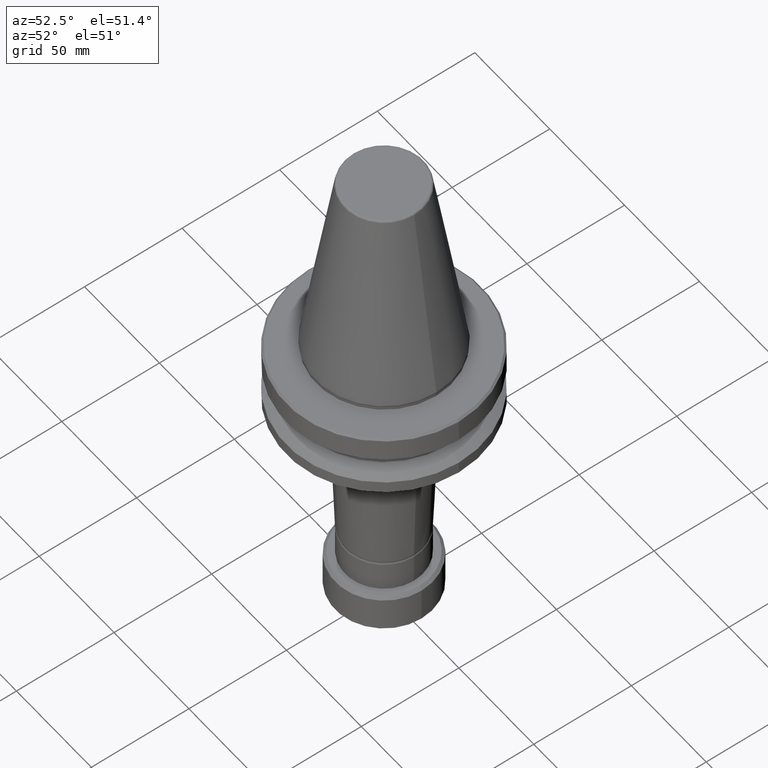
[diagram: clean part render]
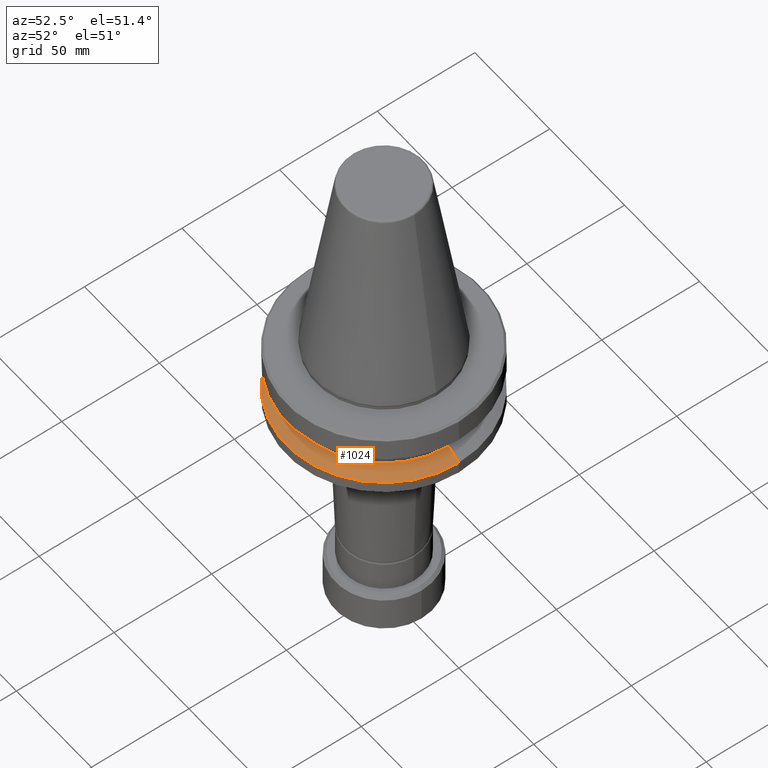
[diagram: same view with one face highlighted and labeled with its STEP entity id]
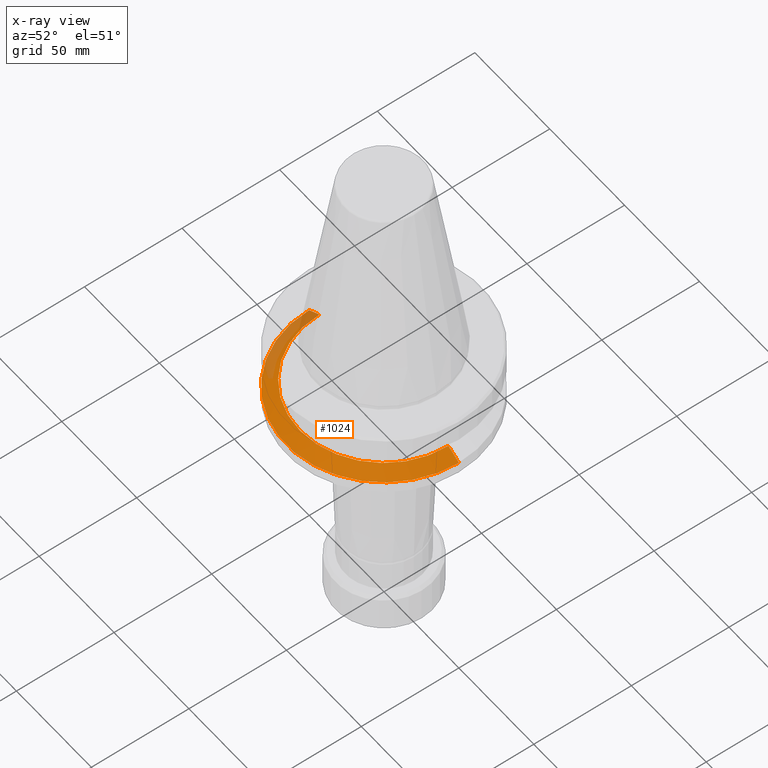
[diagram: x-ray of the same camera — body ghosted, the highlighted face saturated]
A machine part, auxiliary view. The second image highlights one B-rep face of the part: STEP entity #1024.
The next image is the same camera in x-ray: the body ghosted, the highlighted face saturated — about 14% of this face is hidden behind the body in this view.
In plain terms, the highlighted conical surface has half-angle 60 deg.
Its self-contained STEP definition (entity closure, byte-faithful):
#45 = ORIENTED_EDGE ( 'NONE', *, *, #1045, .T. ) ;
#49 = EDGE_CURVE ( 'NONE', #211, #136, #819, .T. ) ;
#59 = EDGE_CURVE ( 'NONE', #136, #282, #1315, .T. ) ;
#97 = DIRECTION ( 'NONE',  ( 1.000000000000000000, 0.0000000000000000000, 0.0000000000000000000 ) ) ;
#122 = CARTESIAN_POINT ( 'NONE',  ( 0.0000000000000000000, 0.0000000000000000000, -26.70000000000072400 ) ) ;
#125 = CIRCLE ( 'NONE', #605, 50.00000000000004300 ) ;
#136 = VERTEX_POINT ( 'NONE', #217 ) ;
#158 = DIRECTION ( 'NONE',  ( -0.0000000000000000000, -0.0000000000000000000, 1.000000000000000000 ) ) ;
#211 = VERTEX_POINT ( 'NONE', #1046 ) ;
#217 = CARTESIAN_POINT ( 'NONE',  ( 43.07217782648953600, 5.699027233244186100E-015, -26.70000000000072400 ) ) ;
#282 = VERTEX_POINT ( 'NONE', #592 ) ;
#294 = DIRECTION ( 'NONE',  ( -0.0000000000000000000, -0.0000000000000000000, 1.000000000000000000 ) ) ;
#342 = AXIS2_PLACEMENT_3D ( 'NONE', #970, #563, #347 ) ;
#343 = EDGE_CURVE ( 'NONE', #1340, #282, #125, .T. ) ;
#347 = DIRECTION ( 'NONE',  ( -1.000000000000000000, 0.0000000000000000000, 0.0000000000000000000 ) ) ;
#472 = DIRECTION ( 'NONE',  ( -0.8660254037844390400, 0.0000000000000000000, -0.4999999999999993300 ) ) ;
#484 = CARTESIAN_POINT ( 'NONE',  ( 50.00000000000004300, 6.123233995736771600E-015, -30.69977999677486800 ) ) ;
#489 = VECTOR ( 'NONE', #472, 1000.000000000000000 ) ;
#499 = CARTESIAN_POINT ( 'NONE',  ( -50.00000000000004300, 6.123233995736771600E-015, -30.69977999677486800 ) ) ;
#522 = CONICAL_SURFACE ( 'NONE', #342, 50.00000000000004300, 1.047197551196598500 ) ;
#555 = FACE_OUTER_BOUND ( 'NONE', #1197, .T. ) ;
#563 = DIRECTION ( 'NONE',  ( 0.0000000000000000000, 0.0000000000000000000, -1.000000000000000000 ) ) ;
#592 = CARTESIAN_POINT ( 'NONE',  ( 50.00000000000004300, 0.0000000000000000000, -30.69977999677486800 ) ) ;
#605 = AXIS2_PLACEMENT_3D ( 'NONE', #1265, #294, #97 ) ;
#664 = ORIENTED_EDGE ( 'NONE', *, *, #343, .T. ) ;
#819 = CIRCLE ( 'NONE', #1118, 43.07217782648953600 ) ;
#843 = ORIENTED_EDGE ( 'NONE', *, *, #49, .F. ) ;
#844 = DIRECTION ( 'NONE',  ( 0.8660254037844390400, 1.060575238724907400E-016, -0.4999999999999993300 ) ) ;
#970 = CARTESIAN_POINT ( 'NONE',  ( 0.0000000000000000000, 0.0000000000000000000, -30.69977999677486800 ) ) ;
#1018 = ORIENTED_EDGE ( 'NONE', *, *, #59, .F. ) ;
#1020 = VECTOR ( 'NONE', #844, 1000.000000000000000 ) ;
#1024 = ADVANCED_FACE ( 'NONE', ( #555 ), #522, .T. ) ;
#1035 = LINE ( 'NONE', #1091, #489 ) ;
#1045 = EDGE_CURVE ( 'NONE', #211, #1340, #1035, .T. ) ;
#1046 = CARTESIAN_POINT ( 'NONE',  ( -43.07217782648953600, 0.0000000000000000000, -26.70000000000072400 ) ) ;
#1091 = CARTESIAN_POINT ( 'NONE',  ( -50.00000000000004300, 0.0000000000000000000, -30.69977999677486800 ) ) ;
#1118 = AXIS2_PLACEMENT_3D ( 'NONE', #122, #158, #1387 ) ;
#1197 = EDGE_LOOP ( 'NONE', ( #1018, #843, #45, #664 ) ) ;
#1265 = CARTESIAN_POINT ( 'NONE',  ( 0.0000000000000000000, 0.0000000000000000000, -30.69977999677486800 ) ) ;
#1315 = LINE ( 'NONE', #484, #1020 ) ;
#1340 = VERTEX_POINT ( 'NONE', #499 ) ;
#1387 = DIRECTION ( 'NONE',  ( 1.000000000000000000, 0.0000000000000000000, 0.0000000000000000000 ) ) ;